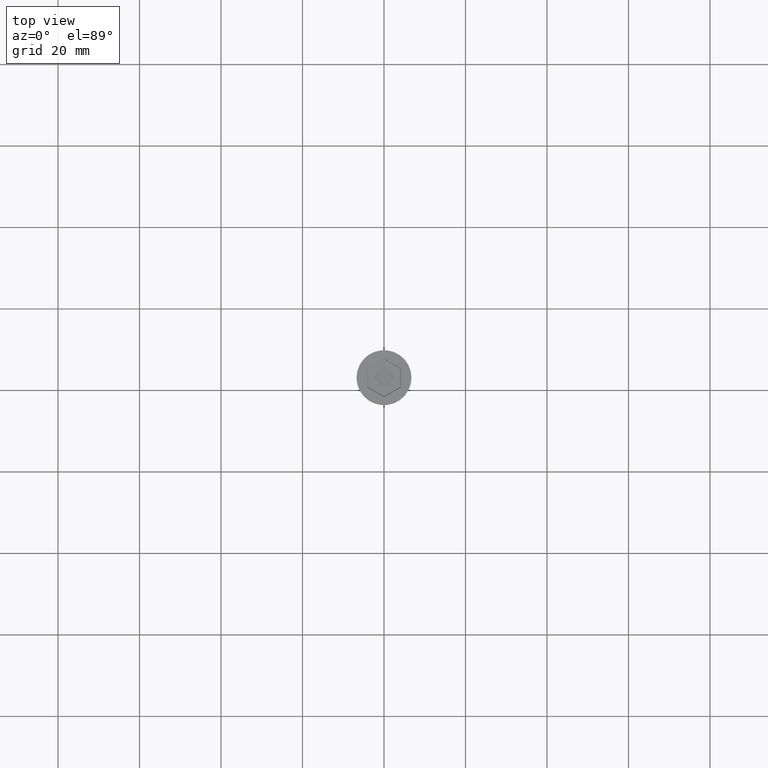
[diagram: clean part render]
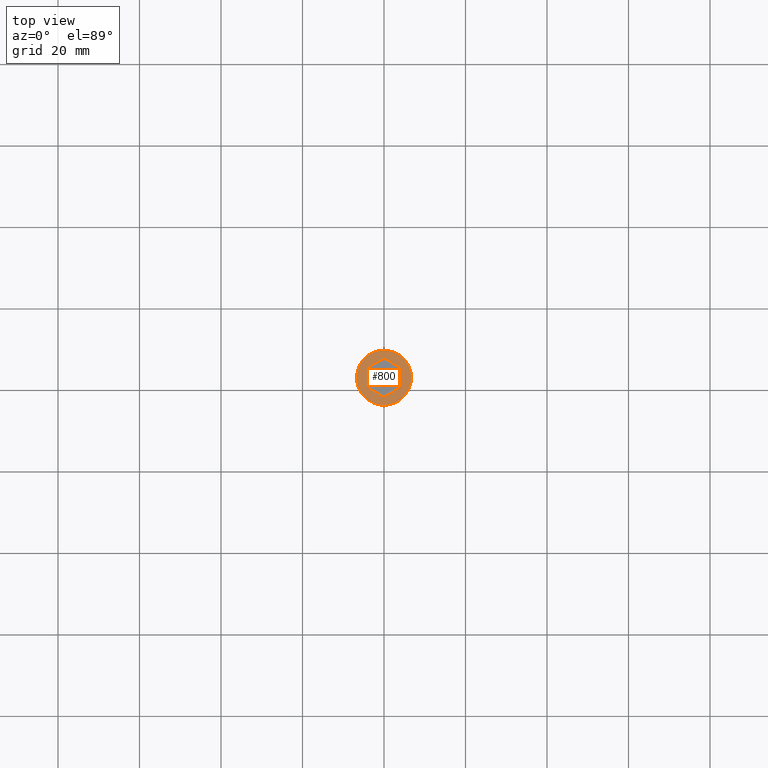
[diagram: same view with one face highlighted and labeled with its STEP entity id]
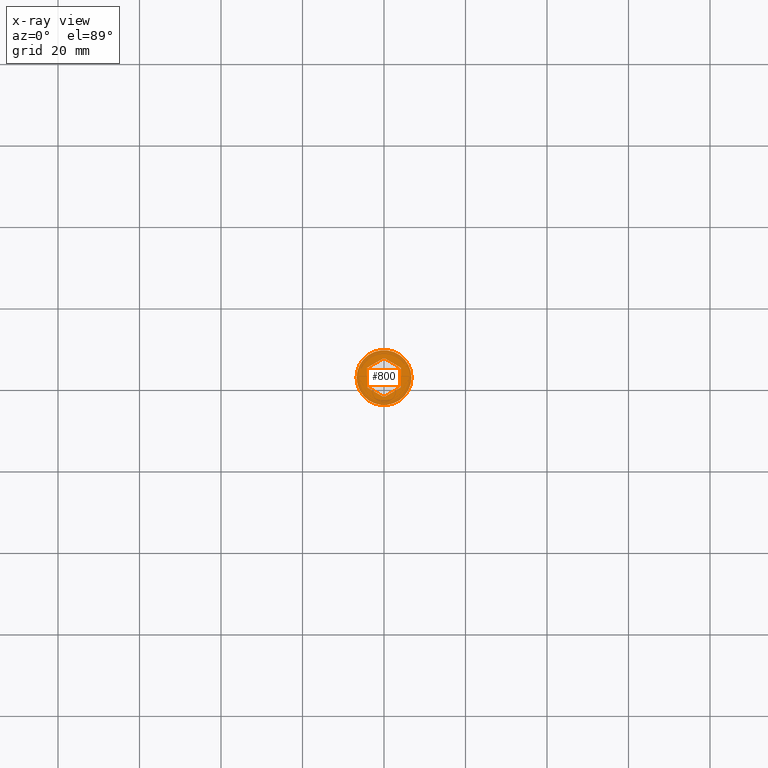
[diagram: x-ray of the same camera — body ghosted, the highlighted face saturated]
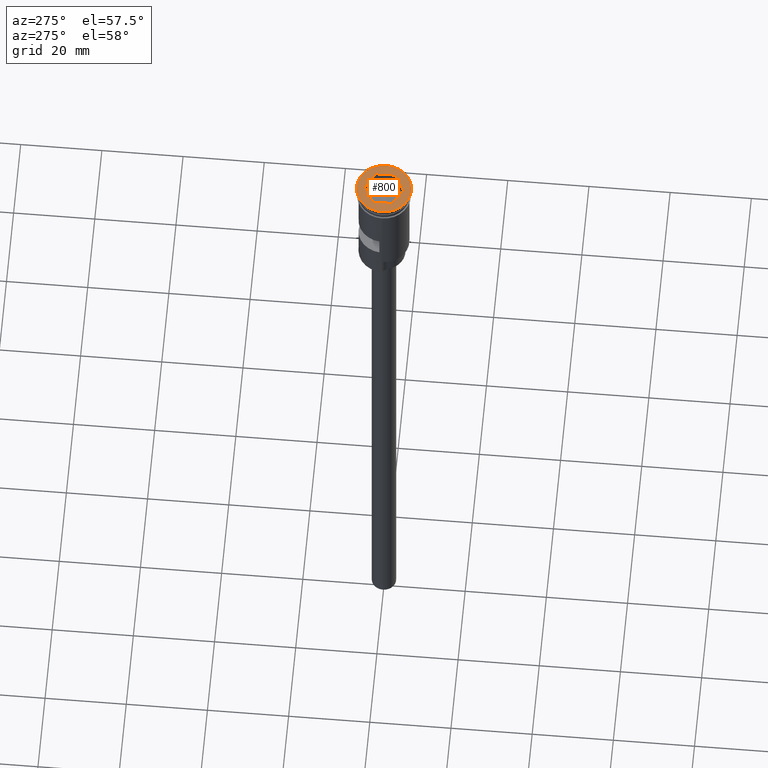
[diagram: same view with one face highlighted and labeled with its STEP entity id]
A machine part, top view. The second image highlights one B-rep face of the part: STEP entity #800.
The next image is the same camera in x-ray: the body ghosted, the highlighted face saturated — about 0% of this face is hidden behind the body in this view.
A second angle (auxiliary view) of the same face is appended — the face is thin or edge-on in the first view.
In plain terms, the highlighted planar face has unit normal (0, -0, 1).
Its self-contained STEP definition (entity closure, byte-faithful):
#5 = ORIENTED_EDGE ( 'NONE', *, *, #123, .T. ) ;
#27 = VERTEX_POINT ( 'NONE', #1242 ) ;
#37 = VERTEX_POINT ( 'NONE', #471 ) ;
#123 = EDGE_CURVE ( 'NONE', #1186, #323, #866, .T. ) ;
#130 = DIRECTION ( 'NONE',  ( 0.000000000000000000, 1.000000000000000000, 0.000000000000000000 ) ) ;
#150 = EDGE_CURVE ( 'NONE', #27, #1512, #381, .T. ) ;
#154 = DIRECTION ( 'NONE',  ( 1.000000000000000000, 0.000000000000000000, 0.000000000000000000 ) ) ;
#206 = EDGE_CURVE ( 'NONE', #37, #27, #1403, .T. ) ;
#239 = CARTESIAN_POINT ( 'NONE',  ( -4.150000000000021672, -2.396003617136959640, 0.000000000000000000 ) ) ;
#276 = CARTESIAN_POINT ( 'NONE',  ( 0.000000000000000000, 0.000000000000000000, 0.000000000000000000 ) ) ;
#278 = CARTESIAN_POINT ( 'NONE',  ( -4.150000000000021672, 2.280533563299020905, 0.000000000000000000 ) ) ;
#286 = CARTESIAN_POINT ( 'NONE',  ( 4.150000000000019895, -2.280533563299022681, 0.000000000000000000 ) ) ;
#297 = VECTOR ( 'NONE', #130, 1000.000000000000000 ) ;
#310 = ORIENTED_EDGE ( 'NONE', *, *, #150, .T. ) ;
#323 = VERTEX_POINT ( 'NONE', #1175 ) ;
#381 = LINE ( 'NONE', #876, #562 ) ;
#388 = EDGE_CURVE ( 'NONE', #1357, #507, #473, .T. ) ;
#391 = LINE ( 'NONE', #606, #498 ) ;
#400 = DIRECTION ( 'NONE',  ( -0.000000000000000000, -0.000000000000000000, 1.000000000000000000 ) ) ;
#409 = DIRECTION ( 'NONE',  ( 1.000000000000000000, 0.000000000000000000, 0.000000000000000000 ) ) ;
#465 = FACE_OUTER_BOUND ( 'NONE', #1534, .T. ) ;
#471 = CARTESIAN_POINT ( 'NONE',  ( 4.150000000000021672, 2.396003617136959640, 0.000000000000000000 ) ) ;
#473 = LINE ( 'NONE', #846, #1569 ) ;
#498 = VECTOR ( 'NONE', #1107, 999.9999999999998863 ) ;
#499 = CARTESIAN_POINT ( 'NONE',  ( -1.044795037522899886E-15, 4.792007234273919281, 0.000000000000000000 ) ) ;
#502 = EDGE_CURVE ( 'NONE', #1048, #1357, #1258, .T. ) ;
#507 = VERTEX_POINT ( 'NONE', #499 ) ;
#519 = CARTESIAN_POINT ( 'NONE',  ( 0.000000000000000000, 0.000000000000000000, 0.000000000000000000 ) ) ;
#523 = DIRECTION ( 'NONE',  ( -3.803328098068756548E-16, -1.000000000000000000, 0.000000000000000000 ) ) ;
#533 = CARTESIAN_POINT ( 'NONE',  ( 4.050000000000011369, 2.453738644055928564, 0.000000000000000000 ) ) ;
#538 = AXIS2_PLACEMENT_3D ( 'NONE', #276, #1528, #409 ) ;
#544 = DIRECTION ( 'NONE',  ( 0.8660254037844387076, -0.4999999999999998335, 0.000000000000000000 ) ) ;
#562 = VECTOR ( 'NONE', #750, 1000.000000000000000 ) ;
#577 = FACE_BOUND ( 'NONE', #1603, .T. ) ;
#581 = DIRECTION ( 'NONE',  ( 1.000000000000000000, 0.000000000000000000, 0.000000000000000000 ) ) ;
#606 = CARTESIAN_POINT ( 'NONE',  ( -4.050000000000011369, -2.453738644055928564, 0.000000000000000000 ) ) ;
#636 = ORIENTED_EDGE ( 'NONE', *, *, #941, .T. ) ;
#705 = AXIS2_PLACEMENT_3D ( 'NONE', #519, #400, #154 ) ;
#718 = CARTESIAN_POINT ( 'NONE',  ( 0.000000000000000000, 0.000000000000000000, 0.000000000000000000 ) ) ;
#750 = DIRECTION ( 'NONE',  ( -0.8660254037844387076, -0.4999999999999998890, 0.000000000000000000 ) ) ;
#778 = LINE ( 'NONE', #533, #1573 ) ;
#800 = ADVANCED_FACE ( 'NONE', ( #577, #465 ), #1457, .T. ) ;
#846 = CARTESIAN_POINT ( 'NONE',  ( -0.1000000000000110661, 4.734272207354949913, 0.000000000000000000 ) ) ;
#866 = CIRCLE ( 'NONE', #705, 6.750000000000000000 ) ;
#868 = CIRCLE ( 'NONE', #538, 6.750000000000000000 ) ;
#876 = CARTESIAN_POINT ( 'NONE',  ( 0.1000000000000099976, -4.734272207354950801, 0.000000000000000000 ) ) ;
#929 = ORIENTED_EDGE ( 'NONE', *, *, #502, .T. ) ;
#934 = CARTESIAN_POINT ( 'NONE',  ( -6.750000000000000000, 8.266365894244634333E-16, 0.000000000000000000 ) ) ;
#941 = EDGE_CURVE ( 'NONE', #1512, #1048, #391, .T. ) ;
#948 = VECTOR ( 'NONE', #523, 1000.000000000000000 ) ;
#962 = CARTESIAN_POINT ( 'NONE',  ( -4.150000000000021672, 2.396003617136960084, 0.000000000000000000 ) ) ;
#1028 = ORIENTED_EDGE ( 'NONE', *, *, #1102, .T. ) ;
#1048 = VERTEX_POINT ( 'NONE', #239 ) ;
#1088 = DIRECTION ( 'NONE',  ( 0.8660254037844385966, 0.4999999999999999445, 0.000000000000000000 ) ) ;
#1102 = EDGE_CURVE ( 'NONE', #507, #37, #778, .T. ) ;
#1106 = ORIENTED_EDGE ( 'NONE', *, *, #388, .T. ) ;
#1107 = DIRECTION ( 'NONE',  ( -0.8660254037844385966, 0.5000000000000002220, 0.000000000000000000 ) ) ;
#1108 = EDGE_CURVE ( 'NONE', #323, #1186, #868, .T. ) ;
#1175 = CARTESIAN_POINT ( 'NONE',  ( 6.750000000000000000, 0.000000000000000000, 0.000000000000000000 ) ) ;
#1180 = AXIS2_PLACEMENT_3D ( 'NONE', #718, #1443, #581 ) ;
#1186 = VERTEX_POINT ( 'NONE', #934 ) ;
#1242 = CARTESIAN_POINT ( 'NONE',  ( 4.150000000000019895, -2.396003617136961417, 0.000000000000000000 ) ) ;
#1258 = LINE ( 'NONE', #278, #297 ) ;
#1352 = ORIENTED_EDGE ( 'NONE', *, *, #1108, .T. ) ;
#1357 = VERTEX_POINT ( 'NONE', #962 ) ;
#1403 = LINE ( 'NONE', #286, #948 ) ;
#1418 = ORIENTED_EDGE ( 'NONE', *, *, #206, .T. ) ;
#1443 = DIRECTION ( 'NONE',  ( 0.000000000000000000, -0.000000000000000000, 1.000000000000000000 ) ) ;
#1457 = PLANE ( 'NONE',  #1180 ) ;
#1512 = VERTEX_POINT ( 'NONE', #1532 ) ;
#1528 = DIRECTION ( 'NONE',  ( -0.000000000000000000, -0.000000000000000000, 1.000000000000000000 ) ) ;
#1532 = CARTESIAN_POINT ( 'NONE',  ( -4.614111465591404171E-16, -4.792007234273920169, 0.000000000000000000 ) ) ;
#1534 = EDGE_LOOP ( 'NONE', ( #1352, #5 ) ) ;
#1569 = VECTOR ( 'NONE', #1088, 1000.000000000000114 ) ;
#1573 = VECTOR ( 'NONE', #544, 1000.000000000000000 ) ;
#1603 = EDGE_LOOP ( 'NONE', ( #636, #929, #1106, #1028, #1418, #310 ) ) ;